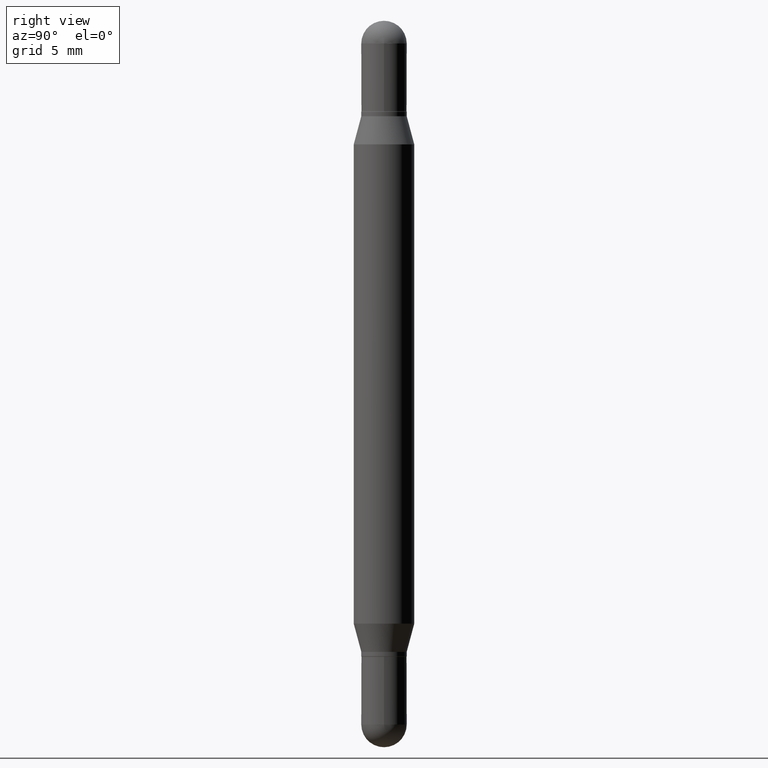
[diagram: clean part render]
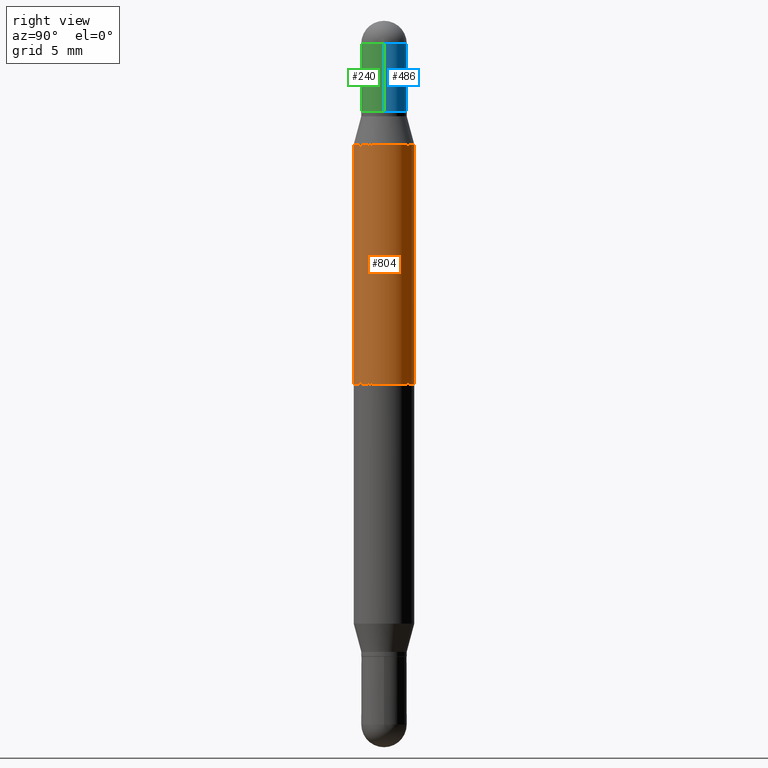
[diagram: same view with three faces highlighted in distinct colors, each labeled with its STEP entity id]
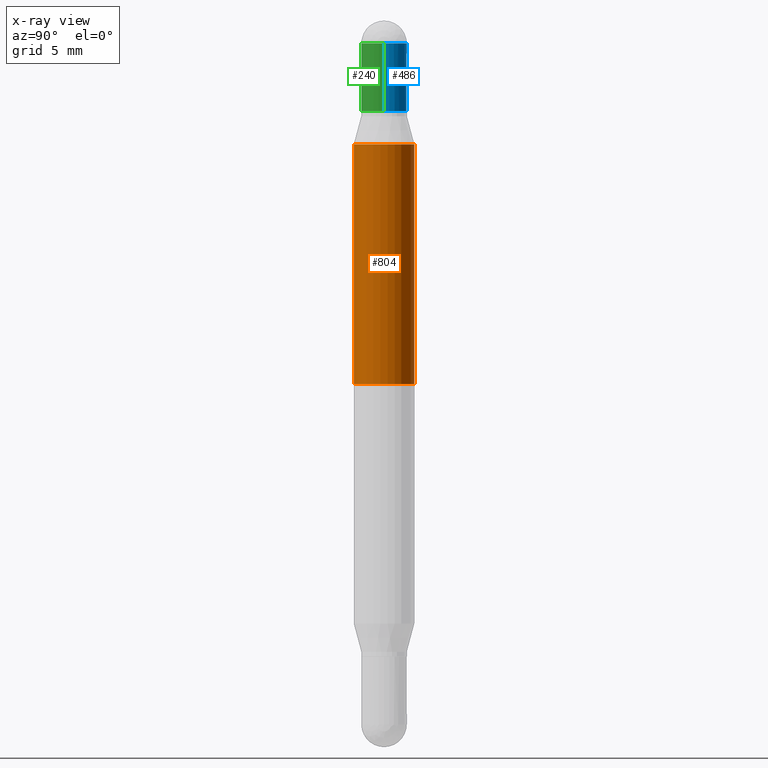
[diagram: x-ray of the same camera — body ghosted, the three highlighted faces saturated]
A machine part, right view with three faces highlighted in distinct colors.
The next image is the same camera in x-ray (body ghosted, the three faces saturated) — at least one of them is partly hidden behind the body in this view.
Their STEP definitions:

[orange] entity #804 — the highlighted cylindrical surface (edge-blend (fillet) strip) has radius 1.5875 mm, axis along (-0, -0, -1).
#9 = CARTESIAN_POINT ( 'NONE',  ( 4.287811248607450787E-16, 0.06249999999999737710, -0.7500000000000004441 ) ) ;
#42 = CARTESIAN_POINT ( 'NONE',  ( -4.364351673553612490E-16, -0.06250000000000090206, -0.2552199925980755957 ) ) ;
#68 = ORIENTED_EDGE ( 'NONE', *, *, #955, .F. ) ;
#75 = VERTEX_POINT ( 'NONE', #138 ) ;
#98 = ORIENTED_EDGE ( 'NONE', *, *, #583, .T. ) ;
#105 = AXIS2_PLACEMENT_3D ( 'NONE', #725, #1058, #899 ) ;
#125 = CARTESIAN_POINT ( 'NONE',  ( 4.287811248607206733E-16, 0.06249999999999477501, -1.500000000000000666 ) ) ;
#138 = CARTESIAN_POINT ( 'NONE',  ( 4.287811248607510938E-16, 0.06249999999999910488, -0.2552199925980759843 ) ) ;
#193 = CARTESIAN_POINT ( 'NONE',  ( 3.043986754269143826E-29, -8.970875169157855902E-16, -0.2552199925980758177 ) ) ;
#232 = AXIS2_PLACEMENT_3D ( 'NONE', #413, #841, #759 ) ;
#234 = EDGE_LOOP ( 'NONE', ( #243, #364, #98, #68 ) ) ;
#243 = ORIENTED_EDGE ( 'NONE', *, *, #780, .F. ) ;
#280 = VERTEX_POINT ( 'NONE', #42 ) ;
#364 = ORIENTED_EDGE ( 'NONE', *, *, #642, .F. ) ;
#369 = DIRECTION ( 'NONE',  ( -6.982962677686265922E-15, -1.000000000000000000, 3.278217592397115862E-15 ) ) ;
#374 = CYLINDRICAL_SURFACE ( 'NONE', #105, 0.06250000000000000000 ) ;
#413 = CARTESIAN_POINT ( 'NONE',  ( 1.834051038839273560E-29, -2.618683417235384459E-15, -0.7500000000000002220 ) ) ;
#466 = DIRECTION ( 'NONE',  ( -2.445401385119030292E-29, -3.479517916173796004E-15, -1.000000000000000000 ) ) ;
#540 = LINE ( 'NONE', #125, #966 ) ;
#583 = EDGE_CURVE ( 'NONE', #280, #1082, #1040, .T. ) ;
#642 = EDGE_CURVE ( 'NONE', #280, #75, #747, .T. ) ;
#706 = DIRECTION ( 'NONE',  ( -2.445401385119030292E-29, -3.479517916173796004E-15, -1.000000000000000000 ) ) ;
#712 = CIRCLE ( 'NONE', #232, 0.06250000000000000000 ) ;
#725 = CARTESIAN_POINT ( 'NONE',  ( 0.000000000000000000, -5.228321854365732350E-15, -1.500000000000000444 ) ) ;
#726 = VERTEX_POINT ( 'NONE', #9 ) ;
#747 = CIRCLE ( 'NONE', #932, 0.06250000000000000000 ) ;
#759 = DIRECTION ( 'NONE',  ( 0.000000000000000000, 1.000000000000000000, -4.370956789862821150E-15 ) ) ;
#775 = CARTESIAN_POINT ( 'NONE',  ( -4.364351673553732298E-16, -0.06250000000000262290, -0.7499999999999998890 ) ) ;
#777 = DIRECTION ( 'NONE',  ( 2.445401385119030572E-29, 3.479517916173795609E-15, 1.000000000000000000 ) ) ;
#780 = EDGE_CURVE ( 'NONE', #75, #726, #540, .T. ) ;
#796 = FACE_OUTER_BOUND ( 'NONE', #234, .T. ) ;
#804 = ADVANCED_FACE ( 'NONE', ( #796 ), #374, .T. ) ;
#841 = DIRECTION ( 'NONE',  ( -0.000000000000000000, -3.485547902910486918E-15, -1.000000000000000000 ) ) ;
#878 = CARTESIAN_POINT ( 'NONE',  ( -4.364351673553916201E-16, -0.06250000000000521805, -1.500000000000000222 ) ) ;
#899 = DIRECTION ( 'NONE',  ( -6.982962677686265922E-15, -1.000000000000000000, 4.370956789862821150E-15 ) ) ;
#932 = AXIS2_PLACEMENT_3D ( 'NONE', #193, #777, #369 ) ;
#955 = EDGE_CURVE ( 'NONE', #726, #1082, #712, .T. ) ;
#964 = VECTOR ( 'NONE', #706, 39.37007874015748143 ) ;
#966 = VECTOR ( 'NONE', #466, 39.37007874015748143 ) ;
#1040 = LINE ( 'NONE', #878, #964 ) ;
#1058 = DIRECTION ( 'NONE',  ( -2.445401385119030572E-29, -3.479517916173795609E-15, -1.000000000000000000 ) ) ;
#1082 = VERTEX_POINT ( 'NONE', #775 ) ;

[blue] entity #486 — the highlighted cylindrical surface (edge-blend (fillet) strip) has radius 1.1913 mm, axis along (-0, -0, -1).
#18 = AXIS2_PLACEMENT_3D ( 'NONE', #1000, #152, #927 ) ;
#25 = EDGE_CURVE ( 'NONE', #37, #760, #1098, .T. ) ;
#32 = ORIENTED_EDGE ( 'NONE', *, *, #25, .T. ) ;
#37 = VERTEX_POINT ( 'NONE', #885 ) ;
#49 = AXIS2_PLACEMENT_3D ( 'NONE', #1023, #420, #757 ) ;
#55 = DIRECTION ( 'NONE',  ( -2.445468806185136877E-29, -3.479614466977828648E-15, -1.000000000000000000 ) ) ;
#67 = CIRCLE ( 'NONE', #49, 0.04689999999999999725 ) ;
#113 = CARTESIAN_POINT ( 'NONE',  ( 0.04689999999999999725, -9.870890088073285070E-16, -0.1870000000000002216 ) ) ;
#137 = DIRECTION ( 'NONE',  ( 2.445468806185136597E-29, 3.479614466977828254E-15, 1.000000000000000000 ) ) ;
#152 = DIRECTION ( 'NONE',  ( 2.445468806185136597E-29, 3.479614466977828254E-15, 1.000000000000000000 ) ) ;
#244 = DIRECTION ( 'NONE',  ( -2.445468806185136597E-29, -3.479614466977828254E-15, -1.000000000000000000 ) ) ;
#283 = VERTEX_POINT ( 'NONE', #547 ) ;
#289 = EDGE_CURVE ( 'NONE', #37, #554, #835, .T. ) ;
#291 = EDGE_LOOP ( 'NONE', ( #1089, #695, #997, #32, #517 ) ) ;
#336 = AXIS2_PLACEMENT_3D ( 'NONE', #339, #244, #492 ) ;
#339 = CARTESIAN_POINT ( 'NONE',  ( 0.000000000000000000, -5.228321854365732350E-15, -1.500000000000000444 ) ) ;
#358 = CIRCLE ( 'NONE', #18, 0.04689999999999999725 ) ;
#373 = CARTESIAN_POINT ( 'NONE',  ( 0.04689999999999999725, -5.555822803949218252E-15, -1.500000000000000444 ) ) ;
#420 = DIRECTION ( 'NONE',  ( 2.445468806185136597E-29, 3.479614466977828254E-15, 1.000000000000000000 ) ) ;
#444 = EDGE_CURVE ( 'NONE', #554, #502, #67, .T. ) ;
#471 = LINE ( 'NONE', #991, #516 ) ;
#486 = ADVANCED_FACE ( 'NONE', ( #594 ), #1112, .T. ) ;
#492 = DIRECTION ( 'NONE',  ( 1.000000000000000000, -6.982962677686277755E-15, 0.000000000000000000 ) ) ;
#502 = VERTEX_POINT ( 'NONE', #825 ) ;
#516 = VECTOR ( 'NONE', #734, 39.37007874015748143 ) ;
#517 = ORIENTED_EDGE ( 'NONE', *, *, #920, .T. ) ;
#547 = CARTESIAN_POINT ( 'NONE',  ( -0.04689999999999999725, -9.408370971656158891E-17, -0.1870000000000002216 ) ) ;
#554 = VERTEX_POINT ( 'NONE', #753 ) ;
#594 = FACE_OUTER_BOUND ( 'NONE', #291, .T. ) ;
#695 = ORIENTED_EDGE ( 'NONE', *, *, #444, .F. ) ;
#734 = DIRECTION ( 'NONE',  ( -2.445468806185136877E-29, -3.479614466977828648E-15, -1.000000000000000000 ) ) ;
#753 = CARTESIAN_POINT ( 'NONE',  ( 3.217573560955207797E-16, 0.04689999999999990010, -0.04690000000000069114 ) ) ;
#757 = DIRECTION ( 'NONE',  ( 1.000000000000000000, -6.982962677686266711E-15, 0.000000000000000000 ) ) ;
#760 = VERTEX_POINT ( 'NONE', #113 ) ;
#811 = CARTESIAN_POINT ( 'NONE',  ( 3.553510722267622201E-29, -1.720940724002502970E-16, -0.04690000000000053154 ) ) ;
#825 = CARTESIAN_POINT ( 'NONE',  ( -0.04689999999999999725, -9.408370971656128076E-17, -0.04690000000000053154 ) ) ;
#834 = VECTOR ( 'NONE', #55, 39.37007874015748143 ) ;
#835 = CIRCLE ( 'NONE', #1092, 0.04689999999999999725 ) ;
#854 = EDGE_CURVE ( 'NONE', #502, #283, #471, .T. ) ;
#885 = CARTESIAN_POINT ( 'NONE',  ( 0.04689999999999999725, -7.433420153955320943E-16, -0.04690000000000053154 ) ) ;
#901 = DIRECTION ( 'NONE',  ( 1.000000000000000000, -6.982962677686266711E-15, 0.000000000000000000 ) ) ;
#920 = EDGE_CURVE ( 'NONE', #760, #283, #358, .T. ) ;
#927 = DIRECTION ( 'NONE',  ( 1.000000000000000000, -6.982962677686266711E-15, 0.000000000000000000 ) ) ;
#991 = CARTESIAN_POINT ( 'NONE',  ( -0.04689999999999999725, -4.906564498270247118E-15, -1.500000000000000444 ) ) ;
#997 = ORIENTED_EDGE ( 'NONE', *, *, #289, .F. ) ;
#1000 = CARTESIAN_POINT ( 'NONE',  ( 3.210900542521084585E-29, -6.595880592238425060E-16, -0.1870000000000002216 ) ) ;
#1023 = CARTESIAN_POINT ( 'NONE',  ( 3.553510722267622201E-29, -1.720940724002502970E-16, -0.04690000000000053154 ) ) ;
#1089 = ORIENTED_EDGE ( 'NONE', *, *, #854, .F. ) ;
#1092 = AXIS2_PLACEMENT_3D ( 'NONE', #811, #137, #901 ) ;
#1098 = LINE ( 'NONE', #373, #834 ) ;
#1112 = CYLINDRICAL_SURFACE ( 'NONE', #336, 0.04689999999999999725 ) ;

[green] entity #240 — the highlighted cylindrical surface (edge-blend (fillet) strip) has radius 1.1913 mm, axis along (-0, -0, -1).
#12 = DIRECTION ( 'NONE',  ( 2.445468806185136597E-29, 3.479614466977828254E-15, 1.000000000000000000 ) ) ;
#25 = EDGE_CURVE ( 'NONE', #37, #760, #1098, .T. ) ;
#37 = VERTEX_POINT ( 'NONE', #885 ) ;
#55 = DIRECTION ( 'NONE',  ( -2.445468806185136877E-29, -3.479614466977828648E-15, -1.000000000000000000 ) ) ;
#80 = CARTESIAN_POINT ( 'NONE',  ( 3.553510722267622201E-29, -1.720940724002502970E-16, -0.04690000000000053154 ) ) ;
#113 = CARTESIAN_POINT ( 'NONE',  ( 0.04689999999999999725, -9.870890088073285070E-16, -0.1870000000000002216 ) ) ;
#148 = DIRECTION ( 'NONE',  ( 2.445468806185136597E-29, 3.479614466977828254E-15, 1.000000000000000000 ) ) ;
#168 = DIRECTION ( 'NONE',  ( 1.000000000000000000, -6.982962677686277755E-15, 0.000000000000000000 ) ) ;
#169 = CARTESIAN_POINT ( 'NONE',  ( 3.553510722267622201E-29, -1.720940724002502970E-16, -0.04690000000000053154 ) ) ;
#195 = AXIS2_PLACEMENT_3D ( 'NONE', #723, #1069, #640 ) ;
#212 = CIRCLE ( 'NONE', #195, 0.04689999999999999725 ) ;
#240 = ADVANCED_FACE ( 'NONE', ( #1020 ), #254, .T. ) ;
#252 = CIRCLE ( 'NONE', #838, 0.04689999999999999725 ) ;
#254 = CYLINDRICAL_SURFACE ( 'NONE', #1076, 0.04689999999999999725 ) ;
#283 = VERTEX_POINT ( 'NONE', #547 ) ;
#373 = CARTESIAN_POINT ( 'NONE',  ( 0.04689999999999999725, -5.555822803949218252E-15, -1.500000000000000444 ) ) ;
#384 = ORIENTED_EDGE ( 'NONE', *, *, #854, .T. ) ;
#406 = EDGE_CURVE ( 'NONE', #283, #760, #212, .T. ) ;
#463 = AXIS2_PLACEMENT_3D ( 'NONE', #80, #148, #743 ) ;
#471 = LINE ( 'NONE', #991, #516 ) ;
#500 = CIRCLE ( 'NONE', #463, 0.04689999999999999725 ) ;
#502 = VERTEX_POINT ( 'NONE', #825 ) ;
#516 = VECTOR ( 'NONE', #734, 39.37007874015748143 ) ;
#532 = ORIENTED_EDGE ( 'NONE', *, *, #918, .F. ) ;
#547 = CARTESIAN_POINT ( 'NONE',  ( -0.04689999999999999725, -9.408370971656158891E-17, -0.1870000000000002216 ) ) ;
#590 = DIRECTION ( 'NONE',  ( -2.445468806185136597E-29, -3.479614466977828254E-15, -1.000000000000000000 ) ) ;
#640 = DIRECTION ( 'NONE',  ( 1.000000000000000000, -6.982962677686266711E-15, 0.000000000000000000 ) ) ;
#664 = VERTEX_POINT ( 'NONE', #787 ) ;
#679 = ORIENTED_EDGE ( 'NONE', *, *, #25, .F. ) ;
#723 = CARTESIAN_POINT ( 'NONE',  ( 3.210900542521084585E-29, -6.595880592238425060E-16, -0.1870000000000002216 ) ) ;
#734 = DIRECTION ( 'NONE',  ( -2.445468806185136877E-29, -3.479614466977828648E-15, -1.000000000000000000 ) ) ;
#743 = DIRECTION ( 'NONE',  ( 1.000000000000000000, -6.982962677686266711E-15, 0.000000000000000000 ) ) ;
#760 = VERTEX_POINT ( 'NONE', #113 ) ;
#763 = CARTESIAN_POINT ( 'NONE',  ( 0.000000000000000000, -5.228321854365732350E-15, -1.500000000000000444 ) ) ;
#787 = CARTESIAN_POINT ( 'NONE',  ( -3.275009495834508474E-16, -0.04690000000000024011, -0.04690000000000036501 ) ) ;
#825 = CARTESIAN_POINT ( 'NONE',  ( -0.04689999999999999725, -9.408370971656128076E-17, -0.04690000000000053154 ) ) ;
#834 = VECTOR ( 'NONE', #55, 39.37007874015748143 ) ;
#838 = AXIS2_PLACEMENT_3D ( 'NONE', #169, #12, #1029 ) ;
#854 = EDGE_CURVE ( 'NONE', #502, #283, #471, .T. ) ;
#885 = CARTESIAN_POINT ( 'NONE',  ( 0.04689999999999999725, -7.433420153955320943E-16, -0.04690000000000053154 ) ) ;
#910 = EDGE_LOOP ( 'NONE', ( #532, #384, #923, #679, #1039 ) ) ;
#918 = EDGE_CURVE ( 'NONE', #502, #664, #500, .T. ) ;
#923 = ORIENTED_EDGE ( 'NONE', *, *, #406, .T. ) ;
#991 = CARTESIAN_POINT ( 'NONE',  ( -0.04689999999999999725, -4.906564498270247118E-15, -1.500000000000000444 ) ) ;
#1020 = FACE_OUTER_BOUND ( 'NONE', #910, .T. ) ;
#1029 = DIRECTION ( 'NONE',  ( 1.000000000000000000, -6.982962677686266711E-15, 0.000000000000000000 ) ) ;
#1039 = ORIENTED_EDGE ( 'NONE', *, *, #1083, .F. ) ;
#1069 = DIRECTION ( 'NONE',  ( 2.445468806185136597E-29, 3.479614466977828254E-15, 1.000000000000000000 ) ) ;
#1076 = AXIS2_PLACEMENT_3D ( 'NONE', #763, #590, #168 ) ;
#1083 = EDGE_CURVE ( 'NONE', #664, #37, #252, .T. ) ;
#1098 = LINE ( 'NONE', #373, #834 ) ;